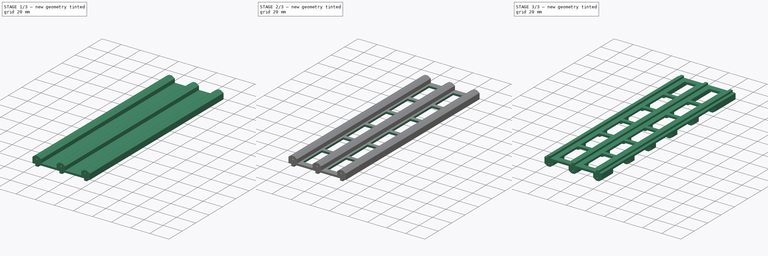
[diagram: build sequence overview — one tinted view per stage of 3, left to right]
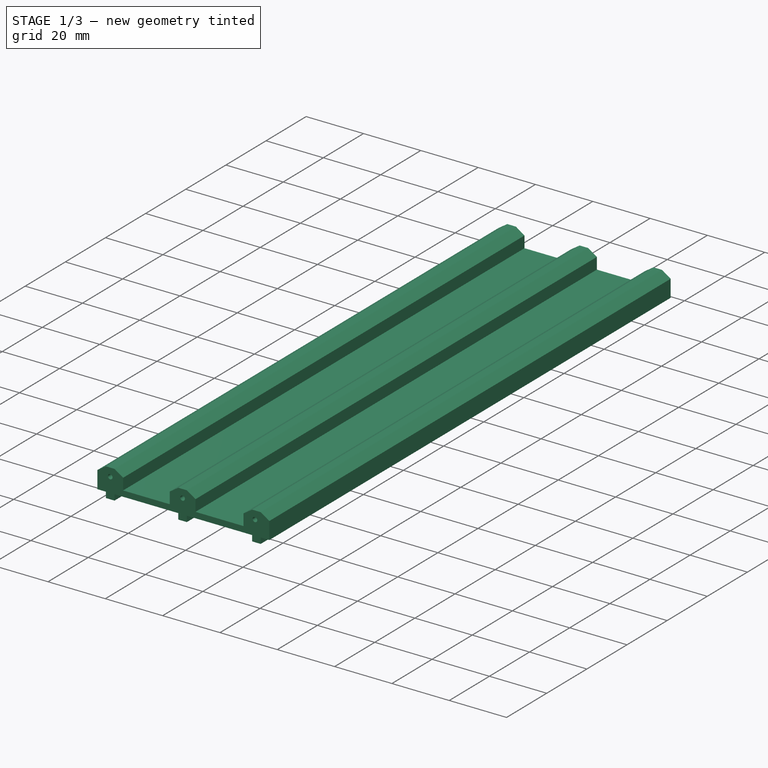
[diagram: stage 1 of 3 — iso view after this stage's code; geometry added in this stage tinted green]
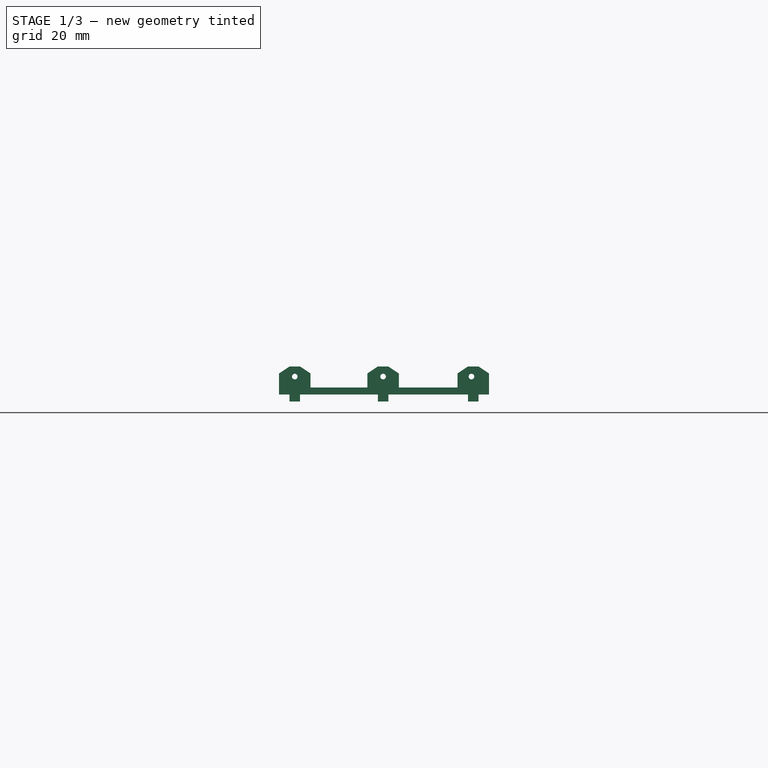
[diagram: stage 1 of 3 — front view after this stage's code; geometry added in this stage tinted green]
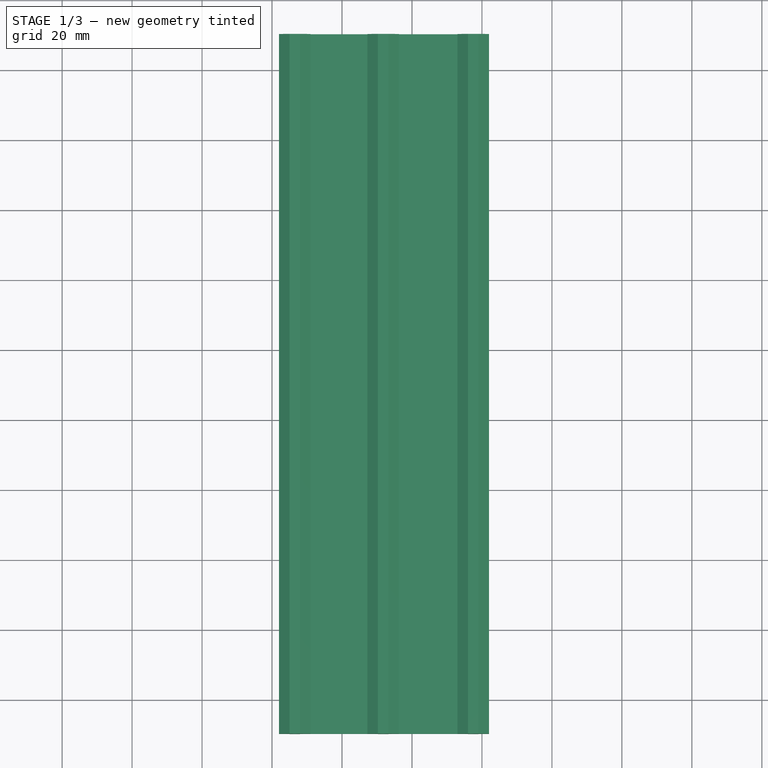
[diagram: stage 1 of 3 — top view after this stage's code; geometry added in this stage tinted green]
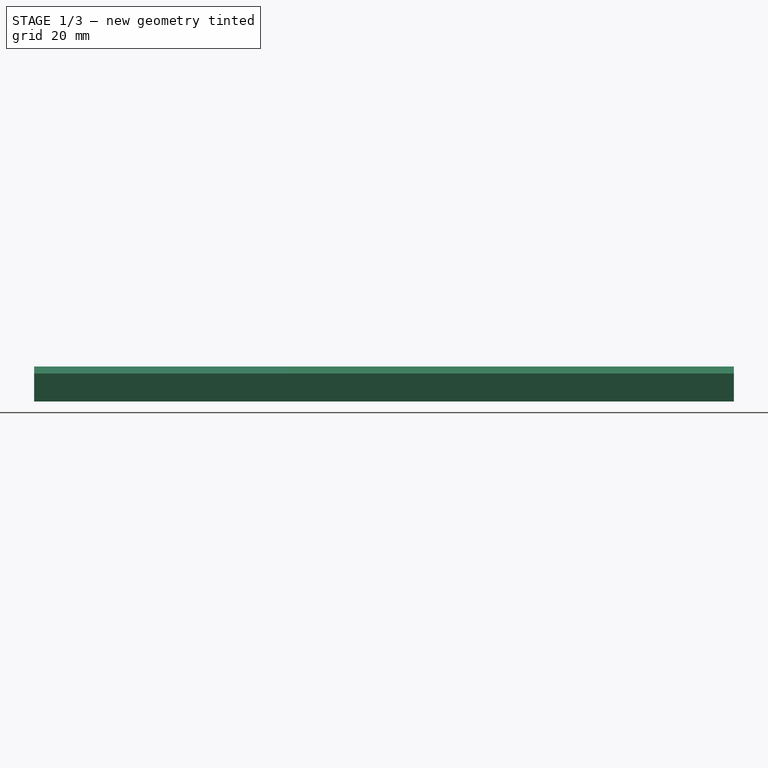
[diagram: stage 1 of 3 — right view after this stage's code; geometry added in this stage tinted green]
FCSTD DOCUMENT  (FreeCAD 1.0R39285 (Git))
Label: side-stand-01
License: All rights reserved
LicenseURL: http://en.wikipedia.org/wiki/All_rights_reserved
objects: Sketcher::SketchObject×7, PartDesign::Pocket×2, PartDesign::Pad×1, PartDesign::Hole×1, PartDesign::Body×1, App::Part×1, Part::Mirroring×1
note: 28 computed .brp shape members not serialized (recipe doc carries the construction recipe); baked Part::Feature solids carry a one-line shape summary decoded from their .brp

FEATURE [Sketcher::SketchObject] Sketch001
  ArcFitTolerance = 1e-06
  FullyConstrained = false
  MakeInternals = false
  MapMode = 45
  Placement = pos=(-8.84591,-9.71239,7.5) rot=(-1,0,0;1.5708rad)
  sketch-geometry (25):
    g0: GeomPoint [constr] X=-3.15 Y=8.69e-14 Z=0
    g1: LineSegment StartX=3.84591 StartY=-8.5 StartZ=0 EndX=-1.15409 EndY=-14.5 EndZ=0
    g2: LineSegment StartX=-1.15409 StartY=-14.5 StartZ=0 EndX=-4.15 EndY=-14.5 EndZ=0
    g3: LineSegment StartX=-4.15 StartY=-14.5 StartZ=0 EndX=-4.15 EndY=14.5 EndZ=0
    g4: LineSegment StartX=-4.15 StartY=14.5 StartZ=0 EndX=-1.15409 EndY=14.5 EndZ=0
    g5: LineSegment StartX=-1.15409 StartY=14.5 StartZ=0 EndX=3.84591 EndY=8.5 EndZ=0
    g6: LineSegment StartX=3.84591 StartY=8.5 StartZ=0 EndX=6.84591 EndY=8.5 EndZ=0
    g7: LineSegment StartX=6.84591 StartY=8.5 StartZ=0 EndX=-0.15 EndY=17.5 EndZ=0
    g8: LineSegment StartX=-9.15 StartY=17.5 StartZ=0 EndX=-9.15 EndY=-17.5 EndZ=0
    g9: LineSegment StartX=-0.15 StartY=-17.5 StartZ=0 EndX=6.84591 EndY=-8.5 EndZ=0
    g10: LineSegment StartX=6.84591 StartY=-8.5 StartZ=0 EndX=3.84591 EndY=-8.5 EndZ=0
    g11: LineSegment StartX=-0.15 StartY=17.5 StartZ=0 EndX=-0.15 EndY=40 EndZ=0
    g12: LineSegment StartX=-0.15 StartY=40 StartZ=0 EndX=40.85 EndY=40 EndZ=0
    g13: LineSegment StartX=40.85 StartY=40 StartZ=0 EndX=45.85 EndY=30 EndZ=0
    g14: LineSegment StartX=45.85 StartY=30 StartZ=0 EndX=50.85 EndY=30 EndZ=0
    g15: LineSegment StartX=50.85 StartY=30 StartZ=0 EndX=50.85 EndY=50 EndZ=0
    g16: LineSegment StartX=50.85 StartY=50 StartZ=0 EndX=-9.15 EndY=50 EndZ=0
    g17: LineSegment StartX=-9.15 StartY=50 StartZ=0 EndX=-9.15 EndY=17.5 EndZ=0
    g18: LineSegment StartX=-0.15 StartY=-17.5 StartZ=0 EndX=-0.15 EndY=-40 EndZ=0
    g19: LineSegment StartX=-0.15 StartY=-40 StartZ=0 EndX=40.85 EndY=-40 EndZ=0
    g20: LineSegment StartX=40.85 StartY=-40 StartZ=0 EndX=45.85 EndY=-30 EndZ=0
    g21: LineSegment StartX=45.85 StartY=-30 StartZ=0 EndX=50.85 EndY=-30 EndZ=0
    g22: LineSegment StartX=50.85 StartY=-30 StartZ=0 EndX=50.85 EndY=-50 EndZ=0
    g23: LineSegment StartX=50.85 StartY=-50 StartZ=0 EndX=-9.15 EndY=-50 EndZ=0
    g24: LineSegment StartX=-9.15 StartY=-50 StartZ=0 EndX=-9.15 EndY=-17.5 EndZ=0
  constraints (83):
    c: Coincident(g1,g2)
    c: Horizontal(g2)
    c: Coincident(g2,g3)
    c: Vertical(g3)
    c: Coincident(g3,g4)
    c: Horizontal(g4)
    c: Coincident(g4,g5)
    c: Coincident(g5,g6)
    c: Horizontal(g6)
    c: Coincident(g6,g7)
    c: Vertical(g8)
    c: Coincident(g9,g10)
    c: Coincident(g10,g1)
    c: DistanceX(g2,g-5) = 1
    c: DistanceX(g8,g2) = 5
    c: DistanceX(g1,g9) = 3
    c: Horizontal(g10)
    c: Equal(g4,g2)
    c: Equal(g7,g9)
    c: Equal(g5,g1)
    c: Equal(g6,g10)
    c: DistanceY(g-7,g3) = 1
    c: DistanceY(g2,g-5) = 1
    c: DistanceY(g-6,g5) = 1
    c: DistanceY(g1,g-3) = 1
    c: DistanceX(g1,g-5) = 0
    c: DistanceX(g-3,g1) = 0
    c: DistanceY(g8,g2) = 3
    c: Coincident(g11,g12)
    c: Horizontal(g12)
    c: Coincident(g12,g13)
    c: Coincident(g13,g14)
    c: Horizontal(g14)
    c: Coincident(g14,g15)
    c: Vertical(g15)
    c: Coincident(g15,g16)
    c: Horizontal(g16)
    c: Coincident(g16,g17)
    c: Vertical(g17)
    c: Vertical(g18)
    c: Coincident(g18,g19)
    c: Horizontal(g19)
    c: Coincident(g19,g20)
    c: Coincident(g20,g21)
    c: Horizontal(g21)
    c: Coincident(g21,g22)
    c: Vertical(g22)
    c: Coincident(g22,g23)
    c: Horizontal(g23)
    c: Coincident(g23,g24)
    c: Coincident(g24,g8)
    c: Vertical(g24)
    c: DistanceX(g16,g16) = 60
    c: Equal(g16,g23)
    c: Equal(g22,g15)
    c: Equal(g21,g14)
    c: DistanceX(g20,g20) = 5
    c: Parallel(g17,g11)
    c: DistanceX(g19,g19) = 41
    c: DistanceX(g12,g12) = 41
    c: DistanceX(g12,g19) = 0
    c: DistanceY(g1,g7) = 32
    c: DistanceY(g9,g1) = 3
    c: DistanceX(g7,g-1) = 0.15
    c: DistanceX(g16,g7) = 9
    c: DistanceY(g-1,g11) = 40
    c: DistanceY(g18,g-1) = 40
    c: DistanceY(g-1,g16) = 50
    c: DistanceY(g23,g-1) = 50
    c: DistanceY(g22,g22) = 20
    c: DistanceY(g11,g11) = 22.5
    c: DistanceY(g8,g8) = 35
    c: DistanceY(g17,g17) = 32.5
    c: Coincident(g11,g7)
    c: Coincident(g18,g9)
    c: Coincident(g8,g17)
    c: DistanceX(g8,g-1) = 9.15
    c: DistanceX(g0,g-1) = 3.15
    c: DistanceX(g-5,g-5) = 2
    c: DistanceX(g23,g23) = 60
    c: DistanceX(g13,g13) = 5
    c: DistanceY(g13,g13) = 10
    c: DistanceY(g22,g15) = 100
FEATURE [Sketcher::SketchObject] Sketch005  label="Sketch_BASE"
  ArcFitTolerance = 1e-06
  ExternalGeometry = -> [Sketch001]
  FullyConstrained = false
  MakeInternals = false
  MapMode = 5
  Placement = pos=(-8.84591,-9.71239,7.5) rot=(1,0,0;1.5708rad)
  sketch-geometry (40):
    g0: LineSegment [constr] StartX=-4.65409 StartY=44.8917 StartZ=0 EndX=45.8459 EndY=44.8917 EndZ=0
    g1: Circle [constr] CenterX=20.5959 CenterY=44.8917 CenterZ=0 NormalX=0 NormalY=0 NormalZ=1 AngleXU=0 Radius=1
    g2: LineSegment [constr] StartX=-4.65 StartY=-45 StartZ=0 EndX=45.85 EndY=-45 EndZ=0
    g3: Circle [constr] CenterX=20.6 CenterY=-45 CenterZ=0 NormalX=0 NormalY=0 NormalZ=1 AngleXU=0 Radius=1
    g4: Circle [constr] CenterX=-4.65 CenterY=-45 CenterZ=0 NormalX=0 NormalY=0 NormalZ=1 AngleXU=0 Radius=1
    g5: Circle [constr] CenterX=45.85 CenterY=-45 CenterZ=0 NormalX=0 NormalY=0 NormalZ=1 AngleXU=0 Radius=1
    g6: Circle [constr] CenterX=-4.65409 CenterY=44.8917 CenterZ=0 NormalX=0 NormalY=0 NormalZ=1 AngleXU=0 Radius=1
    g7: Circle [constr] CenterX=45.8459 CenterY=44.8917 CenterZ=0 NormalX=0 NormalY=0 NormalZ=1 AngleXU=0 Radius=1
    g8: LineSegment StartX=-9.15 StartY=-50 StartZ=0 EndX=-9.15 EndY=-44 EndZ=0
    g9: LineSegment StartX=-9.15 StartY=-44 StartZ=0 EndX=-6.15 EndY=-42 EndZ=0
    g10: LineSegment StartX=-6.15 StartY=-42 StartZ=0 EndX=-3.15 EndY=-42 EndZ=0
    g11: LineSegment StartX=-3.15 StartY=-42 StartZ=0 EndX=-0.15 EndY=-44 EndZ=0
    g12: LineSegment StartX=-0.15 StartY=-44 StartZ=0 EndX=-0.15 EndY=-48 EndZ=0
    g13: LineSegment StartX=-0.15 StartY=-48 StartZ=0 EndX=16.1 EndY=-48 EndZ=0
    g14: LineSegment StartX=16.1 StartY=-48 StartZ=0 EndX=16.1 EndY=-44 EndZ=0
    g15: LineSegment StartX=16.1 StartY=-44 StartZ=0 EndX=19.1 EndY=-42 EndZ=0
    g16: LineSegment StartX=19.1 StartY=-42 StartZ=0 EndX=22.1 EndY=-42 EndZ=0
    g17: LineSegment StartX=22.1 StartY=-42 StartZ=0 EndX=25.1 EndY=-44 EndZ=0
    g18: LineSegment StartX=25.1 StartY=-44 StartZ=0 EndX=25.1 EndY=-48 EndZ=0
    g19: LineSegment StartX=25.1 StartY=-48 StartZ=0 EndX=41.85 EndY=-48 EndZ=0
    g20: LineSegment StartX=41.85 StartY=-48 StartZ=0 EndX=41.85 EndY=-44 EndZ=0
    g21: LineSegment StartX=41.85 StartY=-44 StartZ=0 EndX=44.85 EndY=-42 EndZ=0
    g22: LineSegment StartX=44.85 StartY=-42 StartZ=0 EndX=47.85 EndY=-42 EndZ=0
    g23: LineSegment StartX=47.85 StartY=-42 StartZ=0 EndX=50.85 EndY=-44 EndZ=0
    g24: LineSegment StartX=50.85 StartY=-44 StartZ=0 EndX=50.85 EndY=-50 EndZ=0
    g25: LineSegment StartX=19.1 StartY=-50 StartZ=0 EndX=-3.15 EndY=-50 EndZ=0
    g26: LineSegment [constr] StartX=-9.15 StartY=-44 StartZ=0 EndX=50.85 EndY=-44 EndZ=0
    g27: LineSegment [constr] StartX=20.6 StartY=-45 StartZ=0 EndX=20.6 EndY=-50 EndZ=0
    g28: LineSegment StartX=-6.15 StartY=-50 StartZ=0 EndX=-6.15 EndY=-52 EndZ=0
    g29: LineSegment StartX=-6.15 StartY=-50 StartZ=0 EndX=-9.15 EndY=-50 EndZ=0
    g30: LineSegment StartX=-6.15 StartY=-52 StartZ=0 EndX=-3.15 EndY=-52 EndZ=0
    g31: LineSegment StartX=-3.15 StartY=-52 StartZ=0 EndX=-3.15 EndY=-50 EndZ=0
    g32: LineSegment StartX=19.1 StartY=-50 StartZ=0 EndX=19.1 EndY=-52.0294 EndZ=0
    g33: LineSegment StartX=19.1 StartY=-52.0294 StartZ=0 EndX=22.1 EndY=-52.0294 EndZ=0
    g34: LineSegment StartX=22.1 StartY=-52.0294 StartZ=0 EndX=22.1 EndY=-50.0294 EndZ=0
    g35: LineSegment StartX=22.1 StartY=-50.0294 StartZ=0 EndX=44.85 EndY=-50.0294 EndZ=0
    g36: LineSegment StartX=44.85 StartY=-50.0294 StartZ=0 EndX=44.85 EndY=-52.0294 EndZ=0
    g37: LineSegment StartX=44.85 StartY=-52.0294 StartZ=0 EndX=47.85 EndY=-52.0294 EndZ=0
    g38: LineSegment StartX=47.85 StartY=-52.0294 StartZ=0 EndX=47.85 EndY=-50 EndZ=0
    g39: LineSegment StartX=47.85 StartY=-50 StartZ=0 EndX=50.85 EndY=-50 EndZ=0
  constraints (106):
    c: Symmetric(g-4,g-3,g0)
    c: Symmetric(g-3,g-4,g0)
    c: Diameter(g1) = 2
    c: Symmetric(g0,g0,g1)
    c: Diameter(g3) = 2
    c: Symmetric(g2,g2,g3)
    c: Diameter(g4) = 2
    c: Coincident(g4,g2)
    c: Diameter(g5) = 2
    c: Coincident(g5,g2)
    c: Diameter(g6) = 2
    c: Coincident(g6,g0)
    c: Diameter(g7) = 2
    c: Coincident(g7,g0)
    c: Vertical(g8)
    c: Coincident(g8,g9)
    c: Coincident(g9,g10)
    c: Horizontal(g10)
    c: Coincident(g10,g11)
    c: Coincident(g11,g12)
    c: Vertical(g12)
    c: Coincident(g12,g13)
    c: Horizontal(g13)
    c: Coincident(g13,g14)
    c: Vertical(g14)
    c: Coincident(g14,g15)
    c: Coincident(g15,g16)
    c: Horizontal(g16)
    c: Coincident(g16,g17)
    c: Coincident(g17,g18)
    c: Coincident(g18,g19)
    c: Horizontal(g19)
    c: Coincident(g19,g20)
    c: Vertical(g20)
    c: Coincident(g20,g21)
    c: Coincident(g21,g22)
    c: Coincident(g22,g23)
    c: Coincident(g23,g24)
    c: Vertical(g24)
    c: Coincident(g29,g8)
    c: DistanceY(g8,g8) = 6
    c: DistanceY(g8,g9) = 8
    c: DistanceY(g24,g24) = 6
    c: DistanceY(g8,g15) = 8
    c: DistanceY(g24,g21) = 8
    c: Horizontal(g22)
    c: Vertical(g18)
    c: Coincident(g26,g8)
    c: Coincident(g26,g23)
    c: PointOnObject(g11,g26)
    c: PointOnObject(g14,g26)
    c: PointOnObject(g17,g26)
    c: PointOnObject(g20,g26)
    c: DistanceX(g9,g9) = 3
    c: DistanceX(g11,g11) = 3
    c: DistanceX(g10,g10) = 3
    c: DistanceX(g15,g15) = 3
    c: DistanceX(g16,g16) = 3
    c: DistanceX(g17,g17) = 3
    c: DistanceX(g21,g21) = 3
    c: DistanceX(g22,g22) = 3
    c: DistanceX(g23,g23) = 3
    c: DistanceY(g8,g12) = 2
    c: DistanceY(g24,g19) = 2
    c: Coincident(g27,g3)
    c: Symmetric(g13,g18,g27)
    c: Coincident(g24,g-6)
    c: Coincident(g8,g-6)
    c: Symmetric(g-5,g8,g2)
    c: Symmetric(g-5,g24,g2)
    c: Symmetric(g-5,g-6,g2)
    c: PointOnObject(g28,g29)
    c: Coincident(g28,g30)
    c: DistanceX(g28,g9) = 0
    c: DistanceX(g31,g10) = 0
    c: DistanceY(g28,g28) = 2
    c: Coincident(g25,g31)
    c: PointOnObject(g29,g28)
    c: Coincident(g30,g31)
    c: Vertical(g28)
    c: Vertical(g31)
    c: Horizontal(g30)
    c: Vertical(g32)
    c: Coincident(g32,g33)
    c: Horizontal(g33)
    c: Coincident(g33,g34)
    c: Vertical(g34)
    c: Coincident(g25,g32)
    c: DistanceX(g32,g15) = 0
    c: DistanceX(g16,g33) = 0
    c: Coincident(g35,g34)
    c: Coincident(g39,g24)
    c: Horizontal(g35)
    c: DistanceY(g34,g34) = 2
    c: DistanceY(g25,g25) = 0
    c: Vertical(g36)
    c: Coincident(g36,g37)
    c: Horizontal(g37)
    c: Coincident(g37,g38)
    c: PointOnObject(g38,g39)
    c: Vertical(g38)
    c: Coincident(g35,g36)
    c: PointOnObject(g39,g38)
    c: DistanceY(g36,g36) = 2
    c: DistanceX(g35,g21) = 0
    c: DistanceX(g38,g22) = 0
FEATURE [PartDesign::Pad] Pad
  Direction = (0,-1,2e-16)
  Length = 200
  Length2 = 10
  Placement = pos=(-8.84591,-9.71239,7.5) rot=(1,0,0;1.5708rad)
  Profile = -> Sketch005
  ReferenceAxis = -> Sketch005 [N_Axis]
  Suppressed = false
  Type = 0
FEATURE [Sketcher::SketchObject] Sketch
  ArcFitTolerance = 1e-06
  AttachmentSupport = -> [Pad]
  FullyConstrained = true
  MakeInternals = false
  MapMode = 5
  Placement = pos=(-8.84591,-9.71239,7.5) rot=(-1,0,0;1.5708rad)
FEATURE [Sketcher::SketchObject] Sketch008  label="Sketch_holes001"
  ArcFitTolerance = 1e-06
  FullyConstrained = false
  MakeInternals = false
  MapMode = 5
  Placement = pos=(-8.84591,-9.71239,7.5) rot=(-1,0,0;1.5708rad)
  sketch-geometry (9):
    g0: LineSegment [constr] StartX=-4.65409 StartY=44.8917 StartZ=0 EndX=45.8459 EndY=44.8917 EndZ=0
    g1: Circle CenterX=20.5959 CenterY=44.8917 CenterZ=0 NormalX=0 NormalY=0 NormalZ=1 AngleXU=0 Radius=1
    g2: LineSegment [constr] StartX=-4.65409 StartY=-44.7802 StartZ=0 EndX=45.8459 EndY=-44.7802 EndZ=0
    g3: Circle [constr] CenterX=20.5959 CenterY=-44.7802 CenterZ=0 NormalX=0 NormalY=0 NormalZ=1 AngleXU=0 Radius=1
    g4: Circle [constr] CenterX=-4.65409 CenterY=-44.7802 CenterZ=0 NormalX=0 NormalY=0 NormalZ=1 AngleXU=0 Radius=1
    g5: Circle [constr] CenterX=45.8459 CenterY=-44.7802 CenterZ=0 NormalX=0 NormalY=0 NormalZ=1 AngleXU=0 Radius=1
    g6: Circle CenterX=-4.65409 CenterY=44.8917 CenterZ=0 NormalX=0 NormalY=0 NormalZ=1 AngleXU=0 Radius=1
    g7: Circle CenterX=45.8459 CenterY=44.8917 CenterZ=0 NormalX=0 NormalY=0 NormalZ=1 AngleXU=0 Radius=1
    g8: LineSegment [constr] StartX=20.5959 StartY=-44.7802 StartZ=0 EndX=20.5959 EndY=-50.8731 EndZ=0
  constraints (17):
    c: Symmetric(g-4,g-3,g0)
    c: Symmetric(g-3,g-4,g0)
    c: Diameter(g1) = 2
    c: Symmetric(g0,g0,g1)
    c: Symmetric(g-5,g-6,g2)
    c: Symmetric(g-6,g-5,g2)
    c: Diameter(g3) = 2
    c: Symmetric(g2,g2,g3)
    c: Diameter(g4) = 2
    c: Coincident(g4,g2)
    c: Diameter(g5) = 2
    c: Coincident(g5,g2)
    c: Diameter(g6) = 2
    c: Coincident(g6,g0)
    c: Diameter(g7) = 2
    c: Coincident(g7,g0)
    c: Coincident(g8,g3)
FEATURE [PartDesign::Hole] Hole
  BaseFeature = -> Pad
  CustomThreadClearance = 0
  Depth = 422.098
  DepthType = 1
  Diameter = 1.6
  DrillForDepth = false
  DrillPoint = 1
  DrillPointAngle = 118
  HoleCutCountersinkAngle = 90
  HoleCutCustomValues = false
  HoleCutDepth = 0
  HoleCutDiameter = 6.1
  HoleCutType = 0
  ModelThread = false
  Placement = pos=(-8.84591,-9.71239,7.5) rot=(1,0,0;1.5708rad)
  Profile = -> Sketch008
  Suppressed = false
  Tapered = false
  TaperedAngle = 90
  ThreadClass = 0
  ThreadDepth = 422.098
  ThreadDepthType = 0
  ThreadDirection = 0
  ThreadFit = 0
  ThreadSize = 6
  ThreadType = 1
  Threaded = true
  UseCustomThreadClearance = false
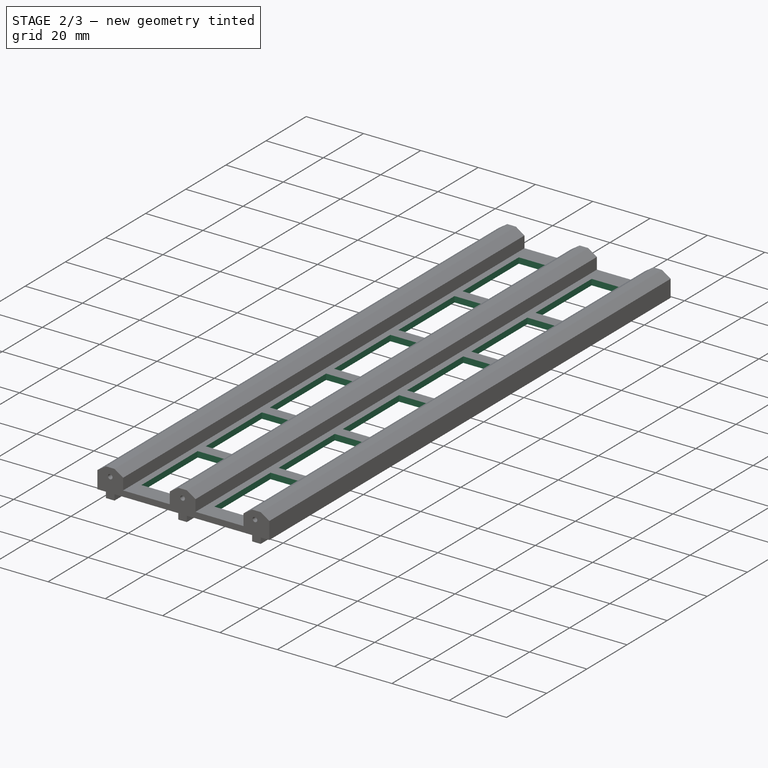
[diagram: stage 2 of 3 — iso view after this stage's code; geometry added in this stage tinted green]
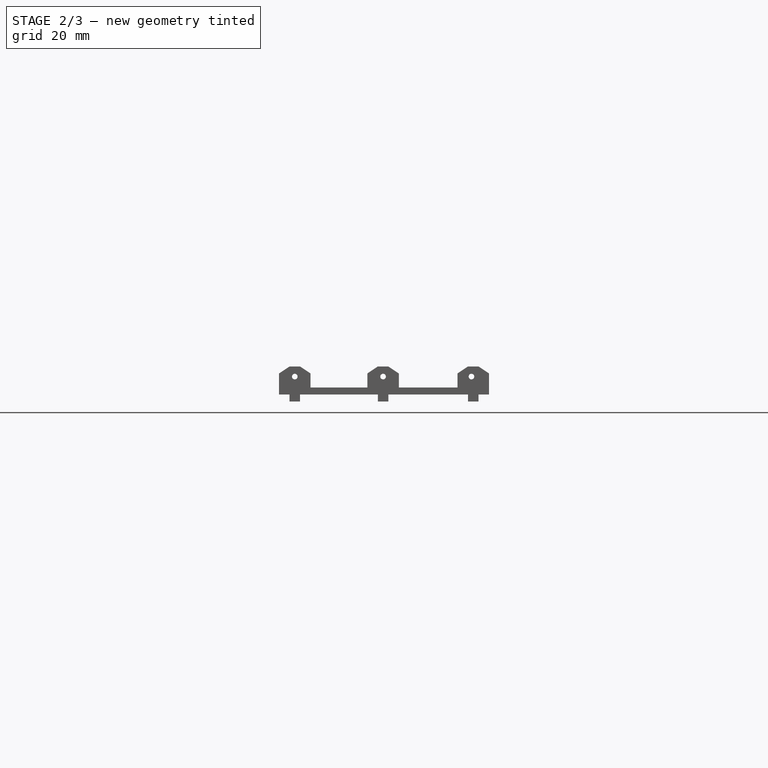
[diagram: stage 2 of 3 — front view after this stage's code; geometry added in this stage tinted green]
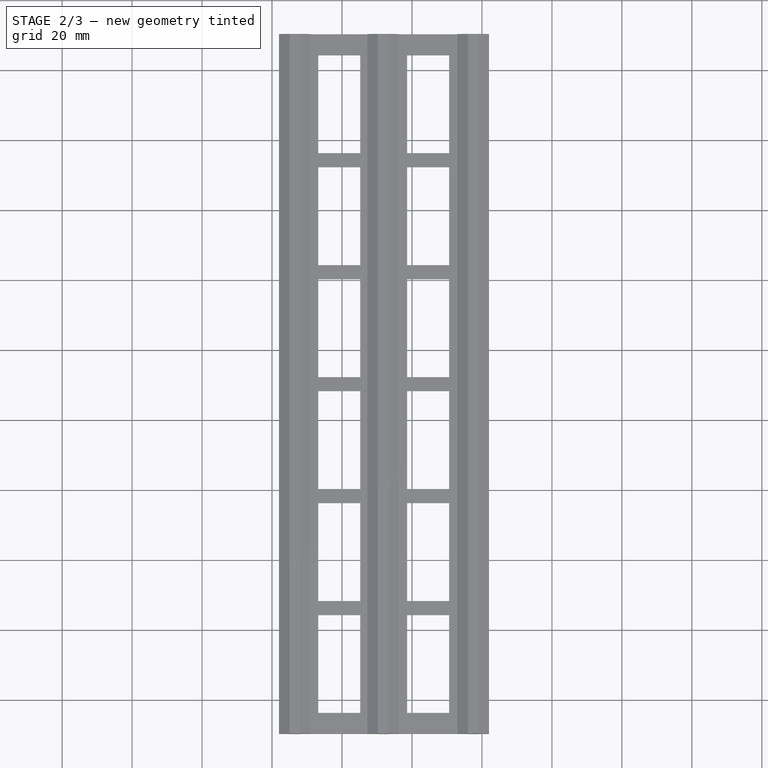
[diagram: stage 2 of 3 — top view after this stage's code; geometry added in this stage tinted green]
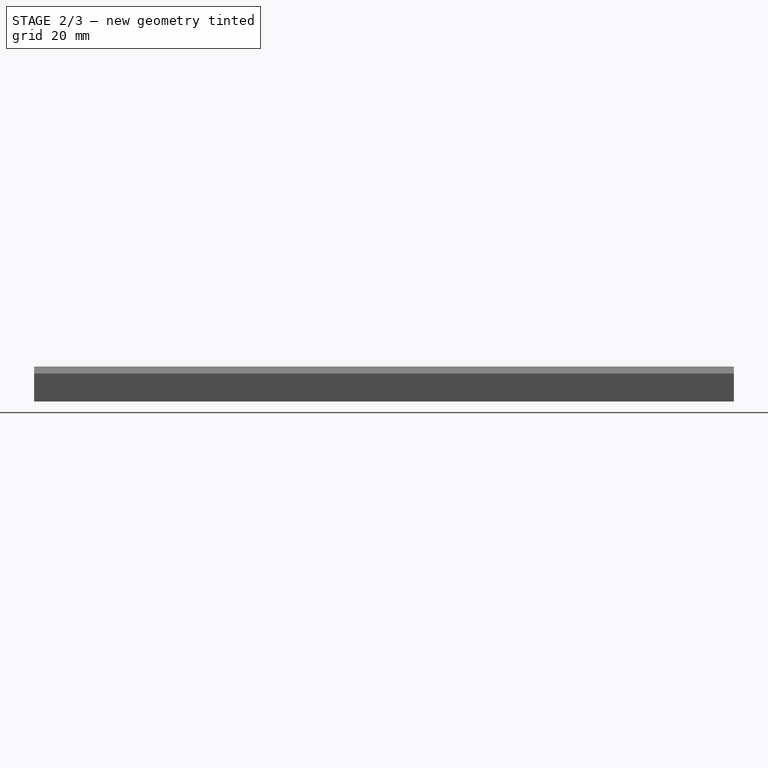
[diagram: stage 2 of 3 — right view after this stage's code; geometry added in this stage tinted green]
FEATURE [Sketcher::SketchObject] Sketch006  label="Sketch_windows"
  ArcFitTolerance = 1e-06
  FullyConstrained = false
  MakeInternals = false
  MapMode = 5
  Placement = pos=(-8.84591,-9.71239,-40.5) rot=(0,0,1;3.14159rad)
  sketch-geometry (52):
    g0: LineSegment StartX=-39.475 StartY=34 StartZ=0 EndX=-39.475 EndY=6 EndZ=0
    g1: LineSegment StartX=-39.475 StartY=6 StartZ=0 EndX=-27.475 EndY=6 EndZ=0
    g2: LineSegment StartX=-27.475 StartY=6 StartZ=0 EndX=-27.475 EndY=34 EndZ=0
    g3: LineSegment StartX=-27.475 StartY=34 StartZ=0 EndX=-39.475 EndY=34 EndZ=0
    g4: LineSegment [constr] StartX=-39.475 StartY=6 StartZ=0 EndX=-41.85 EndY=-1.8e-15 EndZ=0
    g5: LineSegment [constr] StartX=-27.475 StartY=6 StartZ=0 EndX=-25.1 EndY=-1.8e-15 EndZ=0
    g6: LineSegment StartX=-14.05 StartY=34 StartZ=0 EndX=-14.05 EndY=6 EndZ=0
    g7: LineSegment StartX=-14.05 StartY=6 StartZ=0 EndX=-2.05 EndY=6 EndZ=0
    g8: LineSegment StartX=-2.05 StartY=6 StartZ=0 EndX=-2.05 EndY=34 EndZ=0
    g9: LineSegment StartX=-2.05 StartY=34 StartZ=0 EndX=-14.05 EndY=34 EndZ=0
    g10: LineSegment [constr] StartX=-14.05 StartY=6 StartZ=0 EndX=-16.1 EndY=-1.8e-15 EndZ=0
    g11: LineSegment [constr] StartX=-2.05 StartY=6 StartZ=0 EndX=0 EndY=0 EndZ=0
    g12: LineSegment StartX=-39.475 StartY=66 StartZ=0 EndX=-39.475 EndY=38 EndZ=0
    g13: LineSegment StartX=-39.475 StartY=38 StartZ=0 EndX=-27.475 EndY=38 EndZ=0
    g14: LineSegment StartX=-27.475 StartY=38 StartZ=0 EndX=-27.475 EndY=66 EndZ=0
    g15: LineSegment StartX=-27.475 StartY=66 StartZ=0 EndX=-39.475 EndY=66 EndZ=0
    g16: LineSegment StartX=-14.05 StartY=66 StartZ=0 EndX=-14.05 EndY=38 EndZ=0
    g17: LineSegment StartX=-14.05 StartY=38 StartZ=0 EndX=-2.05 EndY=38 EndZ=0
    g18: LineSegment StartX=-2.05 StartY=38 StartZ=0 EndX=-2.05 EndY=66 EndZ=0
    g19: LineSegment StartX=-2.05 StartY=66 StartZ=0 EndX=-14.05 EndY=66 EndZ=0
    g20: LineSegment StartX=-39.475 StartY=98 StartZ=0 EndX=-39.475 EndY=70 EndZ=0
    g21: LineSegment StartX=-39.475 StartY=70 StartZ=0 EndX=-27.475 EndY=70 EndZ=0
    g22: LineSegment StartX=-27.475 StartY=70 StartZ=0 EndX=-27.475 EndY=98 EndZ=0
    g23: LineSegment StartX=-27.475 StartY=98 StartZ=0 EndX=-39.475 EndY=98 EndZ=0
    g24: LineSegment StartX=-14.05 StartY=98 StartZ=0 EndX=-14.05 EndY=70 EndZ=0
    g25: LineSegment StartX=-14.05 StartY=70 StartZ=0 EndX=-2.05 EndY=70 EndZ=0
    g26: LineSegment StartX=-2.05 StartY=70 StartZ=0 EndX=-2.05 EndY=98 EndZ=0
    g27: LineSegment StartX=-2.05 StartY=98 StartZ=0 EndX=-14.05 EndY=98 EndZ=0
    g28: LineSegment StartX=-39.475 StartY=130 StartZ=0 EndX=-39.475 EndY=102 EndZ=0
    g29: LineSegment StartX=-39.475 StartY=102 StartZ=0 EndX=-27.475 EndY=102 EndZ=0
    g30: LineSegment StartX=-27.475 StartY=102 StartZ=0 EndX=-27.475 EndY=130 EndZ=0
    g31: LineSegment StartX=-27.475 StartY=130 StartZ=0 EndX=-39.475 EndY=130 EndZ=0
    g32: LineSegment StartX=-14.05 StartY=130 StartZ=0 EndX=-14.05 EndY=102 EndZ=0
    g33: LineSegment StartX=-14.05 StartY=102 StartZ=0 EndX=-2.05 EndY=102 EndZ=0
    g34: LineSegment StartX=-2.05 StartY=102 StartZ=0 EndX=-2.05 EndY=130 EndZ=0
    g35: LineSegment StartX=-2.05 StartY=130 StartZ=0 EndX=-14.05 EndY=130 EndZ=0
    g36: LineSegment StartX=-39.475 StartY=162 StartZ=0 EndX=-39.475 EndY=134 EndZ=0
    g37: LineSegment StartX=-39.475 StartY=134 StartZ=0 EndX=-27.475 EndY=134 EndZ=0
    g38: LineSegment StartX=-27.475 StartY=134 StartZ=0 EndX=-27.475 EndY=162 EndZ=0
    g39: LineSegment StartX=-27.475 StartY=162 StartZ=0 EndX=-39.475 EndY=162 EndZ=0
    g40: LineSegment StartX=-14.05 StartY=162 StartZ=0 EndX=-14.05 EndY=134 EndZ=0
    g41: LineSegment StartX=-14.05 StartY=134 StartZ=0 EndX=-2.05 EndY=134 EndZ=0
    g42: LineSegment StartX=-2.05 StartY=134 StartZ=0 EndX=-2.05 EndY=162 EndZ=0
    g43: LineSegment StartX=-2.05 StartY=162 StartZ=0 EndX=-14.05 EndY=162 EndZ=0
    g44: LineSegment StartX=-39.475 StartY=194 StartZ=0 EndX=-39.475 EndY=166 EndZ=0
    g45: LineSegment StartX=-39.475 StartY=166 StartZ=0 EndX=-27.475 EndY=166 EndZ=0
    g46: LineSegment StartX=-27.475 StartY=166 StartZ=0 EndX=-27.475 EndY=194 EndZ=0
    g47: LineSegment StartX=-27.475 StartY=194 StartZ=0 EndX=-39.475 EndY=194 EndZ=0
    g48: LineSegment StartX=-14.05 StartY=194 StartZ=0 EndX=-14.05 EndY=166 EndZ=0
    g49: LineSegment StartX=-14.05 StartY=166 StartZ=0 EndX=-2.05 EndY=166 EndZ=0
    g50: LineSegment StartX=-2.05 StartY=166 StartZ=0 EndX=-2.05 EndY=194 EndZ=0
    g51: LineSegment StartX=-2.05 StartY=194 StartZ=0 EndX=-14.05 EndY=194 EndZ=0
  constraints (137):
    c: Coincident(g0,g1)
    c: Coincident(g1,g2)
    c: Coincident(g2,g3)
    c: Coincident(g3,g0)
    c: Vertical(g0)
    c: Vertical(g2)
    c: Horizontal(g1)
    c: Horizontal(g3)
    c: Distance(g0,g2) = 12
    c: Distance(g1,g3) = 28
    c: DistanceY(g-1,g0) = 6
    c: Coincident(g4,g0)
    c: Coincident(g4,g-3)
    c: Coincident(g5,g1)
    c: Coincident(g5,g-4)
    c: Equal(g4,g5)
    c: Coincident(g6,g7)
    c: Coincident(g7,g8)
    c: Coincident(g8,g9)
    c: Coincident(g9,g6)
    c: Vertical(g6)
    c: Vertical(g8)
    c: Horizontal(g7)
    c: Horizontal(g9)
    c: DistanceX(g9,g9) = 12
    c: DistanceY(g6,g6) = 28
    c: DistanceY(g1,g7) = 0
    c: Coincident(g10,g6)
    c: Coincident(g10,g-5)
    c: Coincident(g11,g7)
    c: Coincident(g11,g-1)
    c: Equal(g10,g11)
    c: Coincident(g12,g13)
    c: Coincident(g20,g21)
    c: Coincident(g28,g29)
    c: Coincident(g36,g37)
    c: Coincident(g44,g45)
    c: Coincident(g13,g14)
    c: Coincident(g21,g22)
    c: Coincident(g29,g30)
    c: Coincident(g37,g38)
    c: Coincident(g45,g46)
    c: Coincident(g14,g15)
    c: Coincident(g22,g23)
    c: Coincident(g30,g31)
    c: Coincident(g38,g39)
    c: Coincident(g46,g47)
    c: Coincident(g15,g12)
    c: Coincident(g23,g20)
    c: Coincident(g31,g28)
    c: Coincident(g39,g36)
    c: Coincident(g47,g44)
    c: Vertical(g12)
    c: Vertical(g20)
    c: Vertical(g28)
    c: Vertical(g36)
    c: Vertical(g44)
    c: Vertical(g14)
    c: Vertical(g22)
    c: Vertical(g30)
    c: Vertical(g38)
    c: Vertical(g46)
    c: Horizontal(g13)
    c: Horizontal(g21)
    c: Horizontal(g29)
    c: Horizontal(g37)
    c: Horizontal(g45)
    c: Horizontal(g15)
    c: Horizontal(g23)
    c: Horizontal(g31)
    c: Horizontal(g39)
    c: Horizontal(g47)
    c: Distance(g12,g14) = 12
    c: Distance(g20,g22) = 12
    c: Distance(g28,g30) = 12
    c: Distance(g36,g38) = 12
    c: Distance(g44,g46) = 12
    c: Distance(g13,g15) = 28
    c: Distance(g21,g23) = 28
    c: Distance(g29,g31) = 28
    c: Distance(g37,g39) = 28
    c: Distance(g45,g47) = 28
    c: Coincident(g16,g17)
    c: Coincident(g24,g25)
    c: Coincident(g32,g33)
    c: Coincident(g40,g41)
    c: Coincident(g48,g49)
    c: Coincident(g17,g18)
    c: Coincident(g25,g26)
    c: Coincident(g33,g34)
    c: Coincident(g41,g42)
    c: Coincident(g49,g50)
    c: Coincident(g18,g19)
    c: Coincident(g26,g27)
    c: Coincident(g34,g35)
    c: Coincident(g42,g43)
    c: Coincident(g50,g51)
    c: Coincident(g19,g16)
    c: Coincident(g27,g24)
    c: Coincident(g35,g32)
    c: Coincident(g43,g40)
    c: Coincident(g51,g48)
    c: Vertical(g16)
    c: Vertical(g24)
    c: Vertical(g32)
    c: Vertical(g40)
    c: Vertical(g48)
    c: Vertical(g18)
    c: Vertical(g26)
    c: Vertical(g34)
    c: Vertical(g42)
    c: Vertical(g50)
    c: Horizontal(g17)
    c: Horizontal(g25)
    c: Horizontal(g33)
    c: Horizontal(g41)
    c: Horizontal(g49)
    c: Horizontal(g19)
    c: Horizontal(g27)
    c: Horizontal(g35)
    c: Horizontal(g43)
    c: Horizontal(g51)
    c: Equal(g9,g19)
    c: Equal(g9,g27)
    c: Equal(g9,g35)
    c: Equal(g9,g43)
    c: Equal(g9,g51)
    c: Equal(g6,g16)
    c: Equal(g6,g24)
    c: Equal(g6,g32)
    c: Equal(g6,g40)
    c: Equal(g6,g48)
    c: DistanceY(g13,g17) = 0
    c: DistanceY(g21,g25) = 0
    c: DistanceY(g29,g33) = 0
    c: DistanceY(g37,g41) = 0
    c: DistanceY(g45,g49) = 0
FEATURE [PartDesign::Pocket] Pocket
  BaseFeature = -> Hole
  Direction = (0,0,-1)
  Length = 5
  Length2 = 5
  Placement = pos=(-8.84591,-9.71239,7.5) rot=(1,0,0;1.5708rad)
  Profile = -> Sketch006
  ReferenceAxis = -> Sketch006 [N_Axis]
  Suppressed = false
  Type = 1
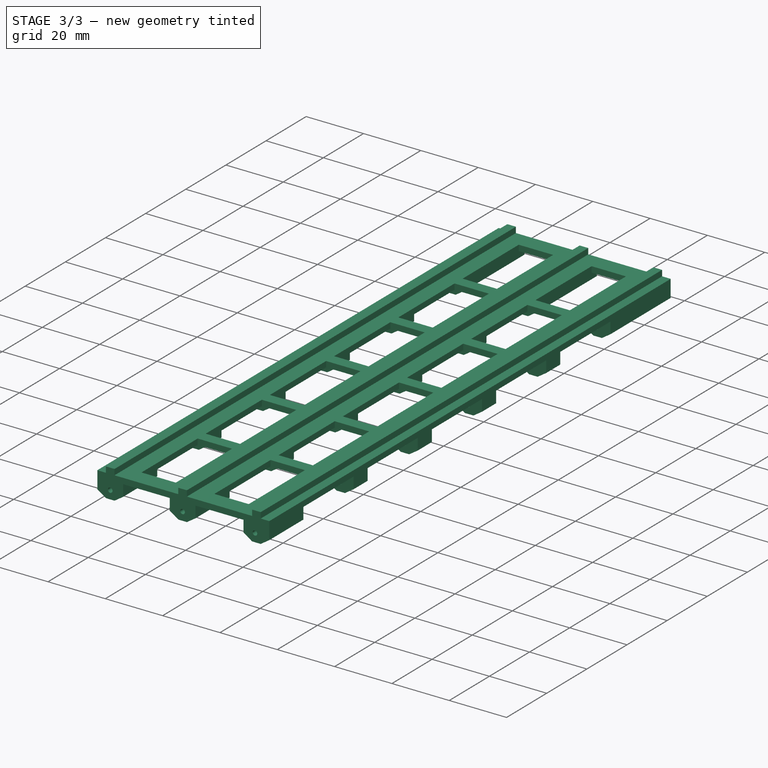
[diagram: stage 3 of 3 — iso view after this stage's code; geometry added in this stage tinted green]
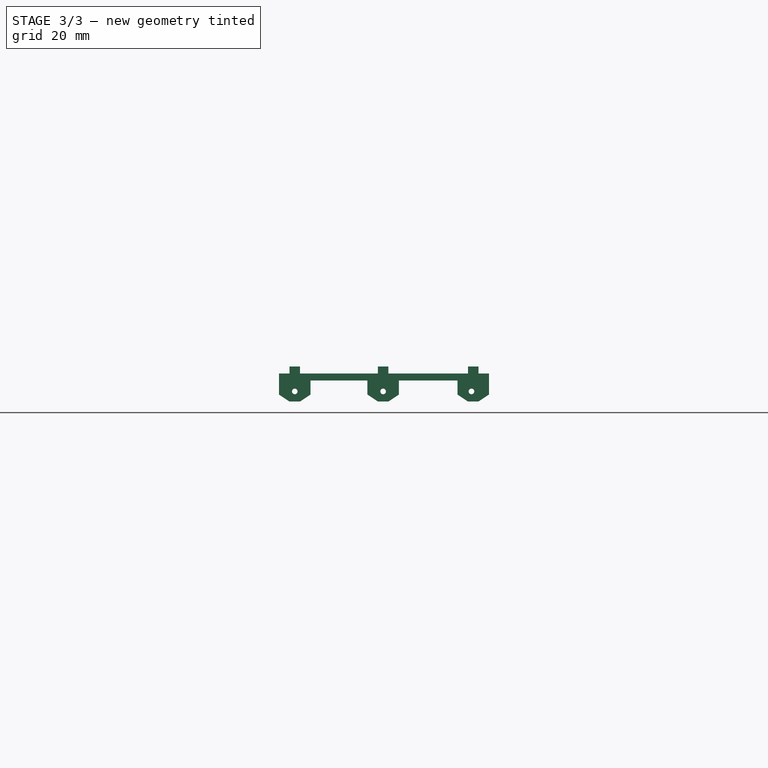
[diagram: stage 3 of 3 — front view after this stage's code; geometry added in this stage tinted green]
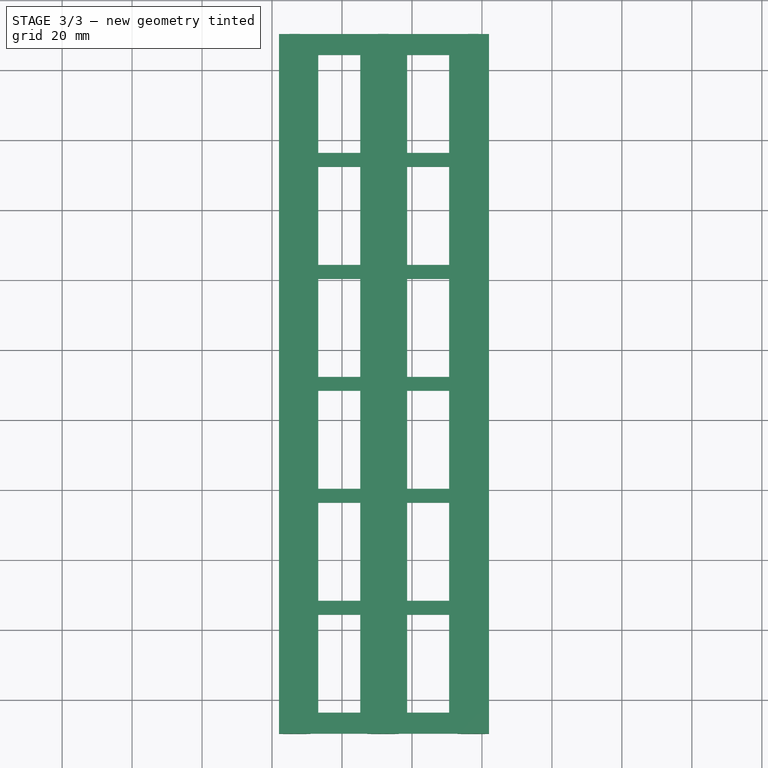
[diagram: stage 3 of 3 — top view after this stage's code; geometry added in this stage tinted green]
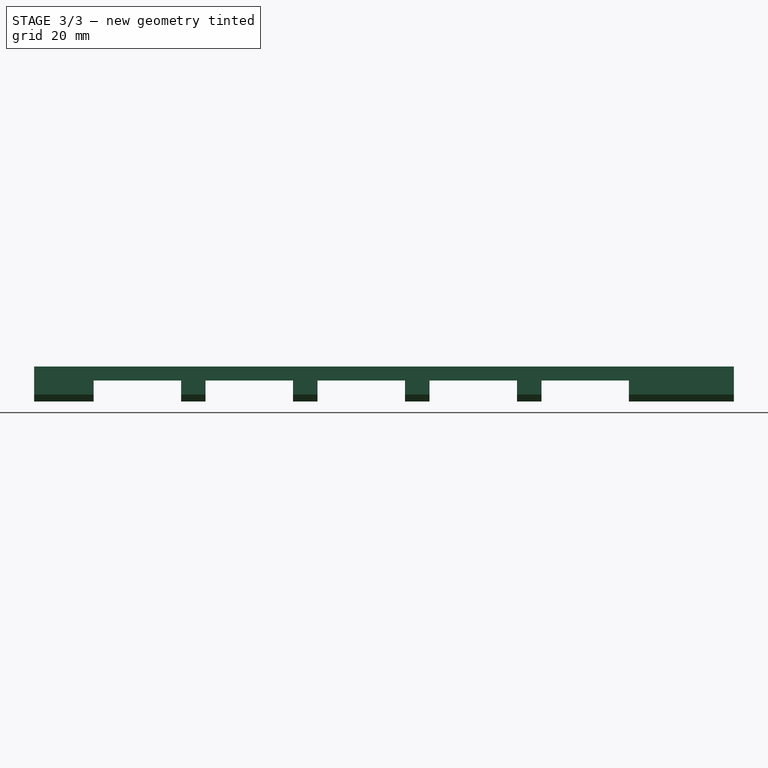
[diagram: stage 3 of 3 — right view after this stage's code; geometry added in this stage tinted green]
FEATURE [Sketcher::SketchObject] Sketch010  label="Sketch_BASE001"
  ArcFitTolerance = 1e-06
  FullyConstrained = false
  MakeInternals = false
  MapMode = 5
  Placement = pos=(-8.84591,-9.71239,7.5) rot=(1,0,0;1.5708rad)
  sketch-geometry (28):
    g0: LineSegment [constr] StartX=-4.65409 StartY=44.8917 StartZ=0 EndX=45.8459 EndY=44.8917 EndZ=0
    g1: Circle [constr] CenterX=20.5959 CenterY=44.8917 CenterZ=0 NormalX=0 NormalY=0 NormalZ=1 AngleXU=0 Radius=1
    g2: LineSegment [constr] StartX=-4.65 StartY=-45 StartZ=0 EndX=45.85 EndY=-45 EndZ=0
    g3: Circle [constr] CenterX=20.6 CenterY=-45 CenterZ=0 NormalX=0 NormalY=0 NormalZ=1 AngleXU=0 Radius=1
    g4: Circle [constr] CenterX=-4.65 CenterY=-45 CenterZ=0 NormalX=0 NormalY=0 NormalZ=1 AngleXU=0 Radius=1
    g5: Circle [constr] CenterX=45.85 CenterY=-45 CenterZ=0 NormalX=0 NormalY=0 NormalZ=1 AngleXU=0 Radius=1
    g6: Circle [constr] CenterX=-4.65409 CenterY=44.8917 CenterZ=0 NormalX=0 NormalY=0 NormalZ=1 AngleXU=0 Radius=1
    g7: Circle [constr] CenterX=45.8459 CenterY=44.8917 CenterZ=0 NormalX=0 NormalY=0 NormalZ=1 AngleXU=0 Radius=1
    g8: LineSegment StartX=-9.15 StartY=-50 StartZ=0 EndX=-9.15 EndY=-44 EndZ=0
    g9: LineSegment StartX=-9.15 StartY=-44 StartZ=0 EndX=-6.15 EndY=-42 EndZ=0
    g10: LineSegment StartX=-6.15 StartY=-42 StartZ=0 EndX=-3.15 EndY=-42 EndZ=0
    g11: LineSegment StartX=-3.15 StartY=-42 StartZ=0 EndX=-0.15 EndY=-44 EndZ=0
    g12: LineSegment StartX=-0.15 StartY=-44 StartZ=0 EndX=-0.15 EndY=-48 EndZ=0
    g13: LineSegment StartX=-0.15 StartY=-48 StartZ=0 EndX=16.1 EndY=-48 EndZ=0
    g14: LineSegment StartX=16.1 StartY=-48 StartZ=0 EndX=16.1 EndY=-44 EndZ=0
    g15: LineSegment StartX=16.1 StartY=-44 StartZ=0 EndX=19.1 EndY=-42 EndZ=0
    g16: LineSegment StartX=19.1 StartY=-42 StartZ=0 EndX=22.1 EndY=-42 EndZ=0
    g17: LineSegment StartX=22.1 StartY=-42 StartZ=0 EndX=25.1 EndY=-44 EndZ=0
    g18: LineSegment StartX=25.1 StartY=-44 StartZ=0 EndX=25.1 EndY=-48 EndZ=0
    g19: LineSegment StartX=25.1 StartY=-48 StartZ=0 EndX=41.85 EndY=-48 EndZ=0
    g20: LineSegment StartX=41.85 StartY=-48 StartZ=0 EndX=41.85 EndY=-44 EndZ=0
    g21: LineSegment StartX=41.85 StartY=-44 StartZ=0 EndX=44.85 EndY=-42 EndZ=0
    g22: LineSegment StartX=44.85 StartY=-42 StartZ=0 EndX=47.85 EndY=-42 EndZ=0
    g23: LineSegment StartX=47.85 StartY=-42 StartZ=0 EndX=50.85 EndY=-44 EndZ=0
    g24: LineSegment StartX=50.85 StartY=-44 StartZ=0 EndX=50.85 EndY=-50 EndZ=0
    g25: LineSegment StartX=50.85 StartY=-50 StartZ=0 EndX=-9.15 EndY=-50 EndZ=0
    g26: LineSegment [constr] StartX=-9.15 StartY=-44 StartZ=0 EndX=50.85 EndY=-44 EndZ=0
    g27: LineSegment [constr] StartX=20.6 StartY=-45 StartZ=0 EndX=20.6 EndY=-50 EndZ=0
  constraints (72):
    c: Symmetric(g-4,g-3,g0)
    c: Symmetric(g-3,g-4,g0)
    c: Diameter(g1) = 2
    c: Symmetric(g0,g0,g1)
    c: Diameter(g3) = 2
    c: Symmetric(g2,g2,g3)
    c: Diameter(g4) = 2
    c: Coincident(g4,g2)
    c: Diameter(g5) = 2
    c: Coincident(g5,g2)
    c: Diameter(g6) = 2
    c: Coincident(g6,g0)
    c: Diameter(g7) = 2
    c: Coincident(g7,g0)
    c: Vertical(g8)
    c: Coincident(g8,g9)
    c: Coincident(g9,g10)
    c: Horizontal(g10)
    c: Coincident(g10,g11)
    c: Coincident(g11,g12)
    c: Vertical(g12)
    c: Coincident(g12,g13)
    c: Horizontal(g13)
    c: Coincident(g13,g14)
    c: Vertical(g14)
    c: Coincident(g14,g15)
    c: Coincident(g15,g16)
    c: Horizontal(g16)
    c: Coincident(g16,g17)
    c: Coincident(g17,g18)
    c: Coincident(g18,g19)
    c: Horizontal(g19)
    c: Coincident(g19,g20)
    c: Vertical(g20)
    c: Coincident(g20,g21)
    c: Coincident(g21,g22)
    c: Coincident(g22,g23)
    c: Coincident(g23,g24)
    c: Vertical(g24)
    c: Coincident(g24,g25)
    c: Coincident(g25,g8)
    c: DistanceY(g8,g8) = 6
    c: DistanceY(g8,g9) = 8
    c: DistanceY(g24,g24) = 6
    c: DistanceY(g8,g15) = 8
    c: DistanceY(g24,g21) = 8
    c: Horizontal(g22)
    c: Vertical(g18)
    c: Coincident(g26,g8)
    c: Coincident(g26,g23)
    c: PointOnObject(g11,g26)
    c: PointOnObject(g14,g26)
    c: PointOnObject(g17,g26)
    c: PointOnObject(g20,g26)
    c: DistanceX(g9,g9) = 3
    c: DistanceX(g11,g11) = 3
    c: DistanceX(g10,g10) = 3
    c: DistanceX(g15,g15) = 3
    c: DistanceX(g16,g16) = 3
    c: DistanceX(g17,g17) = 3
    c: DistanceX(g21,g21) = 3
    c: DistanceX(g22,g22) = 3
    c: DistanceX(g23,g23) = 3
    c: DistanceY(g8,g12) = 2
    c: DistanceY(g24,g19) = 2
    c: Coincident(g27,g3)
    c: Symmetric(g13,g18,g27)
    c: Coincident(g24,g-6)
    c: Coincident(g8,g-6)
    c: Symmetric(g-5,g8,g2)
    c: Symmetric(g-5,g24,g2)
    c: Symmetric(g-5,g-6,g2)
FEATURE [Sketcher::SketchObject] Sketch011  label="Sketch_steps"
  ArcFitTolerance = 1e-06
  FullyConstrained = false
  MakeInternals = false
  MapMode = 5
  Placement = pos=(-8.84591,-9.71239,-40.5) rot=(0,0,1;3.14159rad)
  sketch-geometry (72):
    g0: LineSegment StartX=-50.85 StartY=55 StartZ=0 EndX=-50.85 EndY=30 EndZ=0
    g1: LineSegment StartX=-50.85 StartY=30 StartZ=0 EndX=-41.85 EndY=30 EndZ=0
    g2: LineSegment StartX=-41.85 StartY=30 StartZ=0 EndX=-41.85 EndY=55 EndZ=0
    g3: LineSegment StartX=-41.85 StartY=55 StartZ=0 EndX=-50.85 EndY=55 EndZ=0
    g4: LineSegment [constr] StartX=-33.475 StartY=38 StartZ=0 EndX=-33.475 EndY=6 EndZ=0
    g5: LineSegment [constr] StartX=-8.05 StartY=38 StartZ=0 EndX=-8.05 EndY=6 EndZ=0
    g6: LineSegment StartX=-16.1 StartY=55 StartZ=0 EndX=-16.1 EndY=30 EndZ=0
    g7: LineSegment StartX=-16.1 StartY=30 StartZ=0 EndX=-25.1 EndY=30 EndZ=0
    g8: LineSegment StartX=-25.1 StartY=30 StartZ=0 EndX=-25.1 EndY=55 EndZ=0
    g9: LineSegment StartX=-25.1 StartY=55 StartZ=0 EndX=-16.1 EndY=55 EndZ=0
    g10: LineSegment StartX=0.15 StartY=55 StartZ=0 EndX=0.15 EndY=30 EndZ=0
    g11: LineSegment StartX=0.15 StartY=30 StartZ=0 EndX=9.15 EndY=30 EndZ=0
    g12: LineSegment StartX=9.15 StartY=30 StartZ=0 EndX=9.15 EndY=55 EndZ=0
    g13: LineSegment StartX=9.15 StartY=55 StartZ=0 EndX=0.15 EndY=55 EndZ=0
    g14: LineSegment StartX=-50.85 StartY=87 StartZ=0 EndX=-50.85 EndY=62 EndZ=0
    g15: LineSegment StartX=-50.85 StartY=62 StartZ=0 EndX=-41.85 EndY=62 EndZ=0
    g16: LineSegment StartX=-41.85 StartY=62 StartZ=0 EndX=-41.85 EndY=87 EndZ=0
    g17: LineSegment StartX=-41.85 StartY=87 StartZ=0 EndX=-50.85 EndY=87 EndZ=0
    g18: LineSegment [constr] StartX=-33.475 StartY=70 StartZ=0 EndX=-33.475 EndY=38 EndZ=0
    g19: LineSegment [constr] StartX=-8.05 StartY=70 StartZ=0 EndX=-8.05 EndY=38 EndZ=0
    g20: LineSegment StartX=-16.1 StartY=87 StartZ=0 EndX=-16.1 EndY=62 EndZ=0
    g21: LineSegment StartX=-16.1 StartY=62 StartZ=0 EndX=-25.1 EndY=62 EndZ=0
    g22: LineSegment StartX=-25.1 StartY=62 StartZ=0 EndX=-25.1 EndY=87 EndZ=0
    g23: LineSegment StartX=-25.1 StartY=87 StartZ=0 EndX=-16.1 EndY=87 EndZ=0
    g24: LineSegment StartX=0.15 StartY=87 StartZ=0 EndX=0.15 EndY=62 EndZ=0
    g25: LineSegment StartX=0.15 StartY=62 StartZ=0 EndX=9.15 EndY=62 EndZ=0
    g26: LineSegment StartX=9.15 StartY=62 StartZ=0 EndX=9.15 EndY=87 EndZ=0
    g27: LineSegment StartX=9.15 StartY=87 StartZ=0 EndX=0.15 EndY=87 EndZ=0
    g28: LineSegment StartX=-50.85 StartY=119 StartZ=0 EndX=-50.85 EndY=94 EndZ=0
    g29: LineSegment StartX=-50.85 StartY=94 StartZ=0 EndX=-41.85 EndY=94 EndZ=0
    g30: LineSegment StartX=-41.85 StartY=94 StartZ=0 EndX=-41.85 EndY=119 EndZ=0
    g31: LineSegment StartX=-41.85 StartY=119 StartZ=0 EndX=-50.85 EndY=119 EndZ=0
    g32: LineSegment [constr] StartX=-33.475 StartY=102 StartZ=0 EndX=-33.475 EndY=70 EndZ=0
    g33: LineSegment [constr] StartX=-8.05 StartY=102 StartZ=0 EndX=-8.05 EndY=70 EndZ=0
    g34: LineSegment StartX=-16.1 StartY=119 StartZ=0 EndX=-16.1 EndY=94 EndZ=0
    g35: LineSegment StartX=-16.1 StartY=94 StartZ=0 EndX=-25.1 EndY=94 EndZ=0
    g36: LineSegment StartX=-25.1 StartY=94 StartZ=0 EndX=-25.1 EndY=119 EndZ=0
    g37: LineSegment StartX=-25.1 StartY=119 StartZ=0 EndX=-16.1 EndY=119 EndZ=0
    g38: LineSegment StartX=0.15 StartY=119 StartZ=0 EndX=0.15 EndY=94 EndZ=0
    g39: LineSegment StartX=0.15 StartY=94 StartZ=0 EndX=9.15 EndY=94 EndZ=0
    g40: LineSegment StartX=9.15 StartY=94 StartZ=0 EndX=9.15 EndY=119 EndZ=0
    g41: LineSegment StartX=9.15 StartY=119 StartZ=0 EndX=0.15 EndY=119 EndZ=0
    g42: LineSegment StartX=-50.85 StartY=151 StartZ=0 EndX=-50.85 EndY=126 EndZ=0
    g43: LineSegment StartX=-50.85 StartY=126 StartZ=0 EndX=-41.85 EndY=126 EndZ=0
    g44: LineSegment StartX=-41.85 StartY=126 StartZ=0 EndX=-41.85 EndY=151 EndZ=0
    g45: LineSegment StartX=-41.85 StartY=151 StartZ=0 EndX=-50.85 EndY=151 EndZ=0
    g46: LineSegment [constr] StartX=-33.475 StartY=134 StartZ=0 EndX=-33.475 EndY=102 EndZ=0
    g47: LineSegment [constr] StartX=-8.05 StartY=134 StartZ=0 EndX=-8.05 EndY=102 EndZ=0
    g48: LineSegment StartX=-16.1 StartY=151 StartZ=0 EndX=-16.1 EndY=126 EndZ=0
    g49: LineSegment StartX=-16.1 StartY=126 StartZ=0 EndX=-25.1 EndY=126 EndZ=0
    g50: LineSegment StartX=-25.1 StartY=126 StartZ=0 EndX=-25.1 EndY=151 EndZ=0
    g51: LineSegment StartX=-25.1 StartY=151 StartZ=0 EndX=-16.1 EndY=151 EndZ=0
    g52: LineSegment StartX=0.15 StartY=151 StartZ=0 EndX=0.15 EndY=126 EndZ=0
    g53: LineSegment StartX=0.15 StartY=126 StartZ=0 EndX=9.15 EndY=126 EndZ=0
    g54: LineSegment StartX=9.15 StartY=126 StartZ=0 EndX=9.15 EndY=151 EndZ=0
    g55: LineSegment StartX=9.15 StartY=151 StartZ=0 EndX=0.15 EndY=151 EndZ=0
    g56: LineSegment StartX=-50.85 StartY=183 StartZ=0 EndX=-50.85 EndY=158 EndZ=0
    g57: LineSegment StartX=-50.85 StartY=158 StartZ=0 EndX=-41.85 EndY=158 EndZ=0
    g58: LineSegment StartX=-41.85 StartY=158 StartZ=0 EndX=-41.85 EndY=183 EndZ=0
    g59: LineSegment StartX=-41.85 StartY=183 StartZ=0 EndX=-50.85 EndY=183 EndZ=0
    g60: LineSegment [constr] StartX=-33.475 StartY=166 StartZ=0 EndX=-33.475 EndY=134 EndZ=0
    g61: LineSegment [constr] StartX=-8.05 StartY=166 StartZ=0 EndX=-8.05 EndY=134 EndZ=0
    g62: LineSegment StartX=-16.1 StartY=183 StartZ=0 EndX=-16.1 EndY=158 EndZ=0
    g63: LineSegment StartX=-16.1 StartY=158 StartZ=0 EndX=-25.1 EndY=158 EndZ=0
    g64: LineSegment StartX=-25.1 StartY=158 StartZ=0 EndX=-25.1 EndY=183 EndZ=0
    g65: LineSegment StartX=-25.1 StartY=183 StartZ=0 EndX=-16.1 EndY=183 EndZ=0
    g66: LineSegment StartX=0.15 StartY=183 StartZ=0 EndX=0.15 EndY=158 EndZ=0
    g67: LineSegment StartX=0.15 StartY=158 StartZ=0 EndX=9.15 EndY=158 EndZ=0
    g68: LineSegment StartX=9.15 StartY=158 StartZ=0 EndX=9.15 EndY=183 EndZ=0
    g69: LineSegment StartX=9.15 StartY=183 StartZ=0 EndX=0.15 EndY=183 EndZ=0
    g70: LineSegment [constr] StartX=-33.475 StartY=198 StartZ=0 EndX=-33.475 EndY=166 EndZ=0
    g71: LineSegment [constr] StartX=-8.05 StartY=198 StartZ=0 EndX=-8.05 EndY=166 EndZ=0
  constraints (164):
    c: Coincident(g0,g1)
    c: Coincident(g1,g2)
    c: Coincident(g2,g3)
    c: Coincident(g3,g0)
    c: Vertical(g0)
    c: Vertical(g2)
    c: Horizontal(g1)
    c: Horizontal(g3)
    c: PointOnObject(g0,g-3)
    c: PointOnObject(g1,g-4)
    c: DistanceY(g-4,g1) = 30
    c: DistanceY(g2,g2) = 25
    c: Symmetric(g-15,g-15,g4)
    c: Symmetric(g-16,g-16,g4)
    c: Symmetric(g-17,g-17,g5)
    c: Symmetric(g-18,g-18,g5)
    c: Coincident(g6,g7)
    c: Coincident(g7,g8)
    c: Coincident(g8,g9)
    c: Coincident(g9,g6)
    c: Horizontal(g9)
    c: Horizontal(g7)
    c: Vertical(g8)
    c: Vertical(g6)
    c: DistanceY(g2,g8) = 0
    c: DistanceY(g1,g7) = 0
    c: DistanceX(g1,g7) = 16.75
    c: DistanceX(g9,g9) = 9
    c: Coincident(g10,g11)
    c: Coincident(g11,g12)
    c: Coincident(g12,g13)
    c: Coincident(g13,g10)
    c: PointOnObject(g10,g-9)
    c: PointOnObject(g12,g-12)
    c: Horizontal(g13)
    c: Horizontal(g11)
    c: Vertical(g12)
    c: Vertical(g10)
    c: DistanceY(g6,g10) = 0
    c: DistanceY(g6,g10) = 0
    c: Coincident(g14,g15)
    c: Coincident(g28,g29)
    c: Coincident(g42,g43)
    c: Coincident(g56,g57)
    c: Coincident(g15,g16)
    c: Coincident(g29,g30)
    c: Coincident(g43,g44)
    c: Coincident(g57,g58)
    c: Coincident(g16,g17)
    c: Coincident(g30,g31)
    c: Coincident(g44,g45)
    c: Coincident(g58,g59)
    c: Coincident(g17,g14)
    c: Coincident(g31,g28)
    c: Coincident(g45,g42)
    c: Coincident(g59,g56)
    c: Vertical(g14)
    c: Vertical(g28)
    c: Vertical(g42)
    c: Vertical(g56)
    c: Vertical(g16)
    c: Vertical(g30)
    c: Vertical(g44)
    c: Vertical(g58)
    c: Horizontal(g15)
    c: Horizontal(g29)
    c: Horizontal(g43)
    c: Horizontal(g57)
    c: Horizontal(g17)
    c: Horizontal(g31)
    c: Horizontal(g45)
    c: Horizontal(g59)
    c: Equal(g2,g16)
    c: Equal(g2,g30)
    c: Equal(g2,g44)
    c: Equal(g2,g58)
    c: Coincident(g20,g21)
    c: Coincident(g34,g35)
    c: Coincident(g48,g49)
    c: Coincident(g62,g63)
    c: Coincident(g21,g22)
    c: Coincident(g35,g36)
    c: Coincident(g49,g50)
    c: Coincident(g63,g64)
    c: Coincident(g22,g23)
    c: Coincident(g36,g37)
    c: Coincident(g50,g51)
    c: Coincident(g64,g65)
    c: Coincident(g23,g20)
    c: Coincident(g37,g34)
    c: Coincident(g51,g48)
    c: Coincident(g65,g62)
    c: Horizontal(g23)
    c: Horizontal(g37)
    c: Horizontal(g51)
    c: Horizontal(g65)
    c: Horizontal(g21)
    c: Horizontal(g35)
    c: Horizontal(g49)
    c: Horizontal(g63)
    c: Vertical(g22)
    c: Vertical(g36)
    c: Vertical(g50)
    c: Vertical(g64)
    c: Vertical(g20)
    c: Vertical(g34)
    c: Vertical(g48)
    c: Vertical(g62)
    c: DistanceY(g16,g22) = 0
    c: DistanceY(g30,g36) = 0
    c: DistanceY(g44,g50) = 0
    c: DistanceY(g58,g64) = 0
    c: DistanceY(g15,g21) = 0
    c: DistanceY(g29,g35) = 0
    c: DistanceY(g43,g49) = 0
    c: DistanceY(g57,g63) = 0
    c: DistanceX(g15,g21) = 16.75
    c: DistanceX(g29,g35) = 16.75
    c: DistanceX(g43,g49) = 16.75
    c: DistanceX(g57,g63) = 16.75
    c: Equal(g9,g23)
    c: Equal(g9,g37)
    c: Equal(g9,g51)
    c: Equal(g9,g65)
    c: Coincident(g24,g25)
    c: Coincident(g38,g39)
    c: Coincident(g52,g53)
    c: Coincident(g66,g67)
    c: Coincident(g25,g26)
    c: Coincident(g39,g40)
    c: Coincident(g53,g54)
    c: Coincident(g67,g68)
    c: Coincident(g26,g27)
    c: Coincident(g40,g41)
    c: Coincident(g54,g55)
    c: Coincident(g68,g69)
    c: Coincident(g27,g24)
    c: Coincident(g41,g38)
    c: Coincident(g55,g52)
    c: Coincident(g69,g66)
    c: Horizontal(g27)
    c: Horizontal(g41)
    c: Horizontal(g55)
    c: Horizontal(g69)
    c: Horizontal(g25)
    c: Horizontal(g39)
    c: Horizontal(g53)
    c: Horizontal(g67)
    c: Vertical(g26)
    c: Vertical(g40)
    c: Vertical(g54)
    c: Vertical(g68)
    c: Vertical(g24)
    c: Vertical(g38)
    c: Vertical(g52)
    c: Vertical(g66)
    c: DistanceY(g20,g24) = 0
    c: DistanceY(g34,g38) = 0
    c: DistanceY(g48,g52) = 0
    c: DistanceY(g62,g66) = 0
    c: DistanceY(g20,g24) = 0
    c: DistanceY(g34,g38) = 0
    c: DistanceY(g48,g52) = 0
    c: DistanceY(g62,g66) = 0
FEATURE [PartDesign::Pocket] Pocket001
  BaseFeature = -> Pocket
  Direction = (0,0,-1)
  Length = 10
  Length2 = 5
  Placement = pos=(-8.84591,-9.71239,7.5) rot=(1,0,0;1.5708rad)
  Profile = -> Sketch011
  ReferenceAxis = -> Sketch011 [N_Axis]
  Reversed = true
  Suppressed = false
  Type = 0
FEATURE [PartDesign::Body] Body
  AllowCompound = false
  Group = -> [Sketch005,Pad,Sketch,Sketch008,Hole,Sketch006,Pocket,Sketch011,Pocket001]
  Origin = -> Origin001
  Tip = -> Pocket001
FEATURE [App::Part] Part
  Group = -> [Body]
  Origin = -> Origin
FEATURE [Part::Mirroring] Part__Mirroring  label="Part (Mirror #1)"
  Base = (0,0,0)
  Normal = (0,0,1)
  Placement = pos=(0,0,15) rot=(0,0,1;0rad)
  Source = -> Part
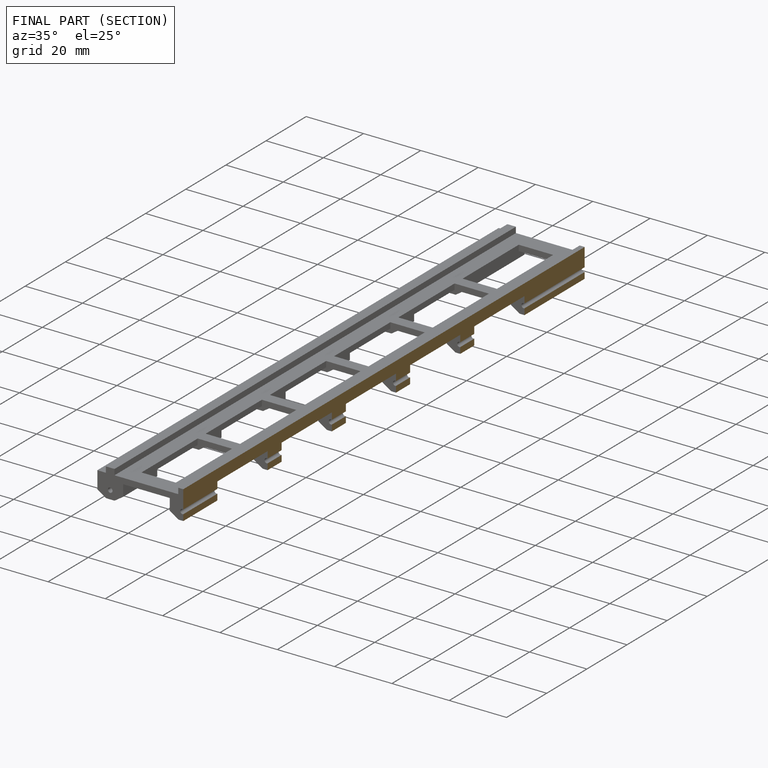
[diagram: finished part — half-section view (interior)]
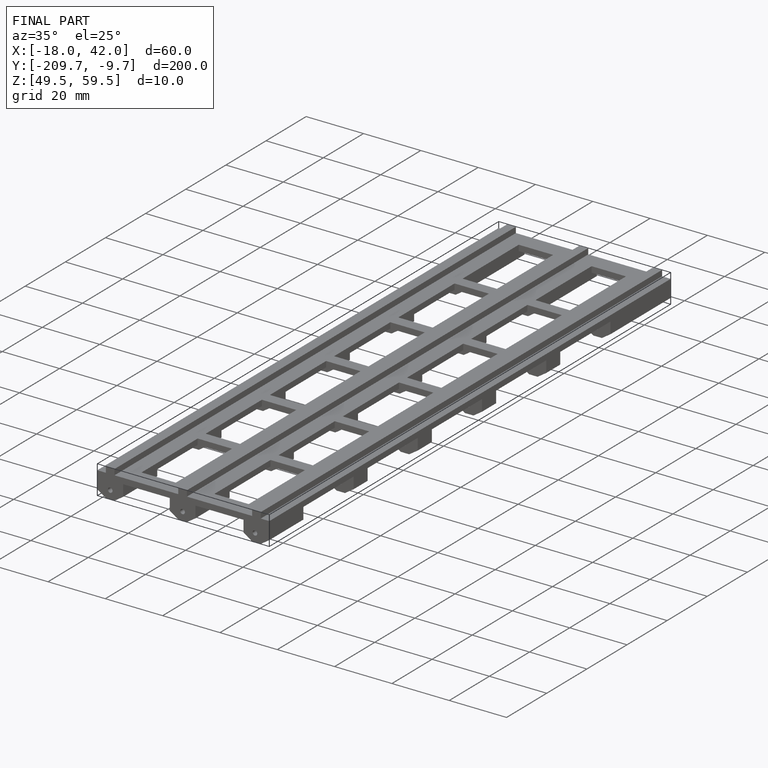
[diagram: finished part — iso view with bounding-box wireframe]
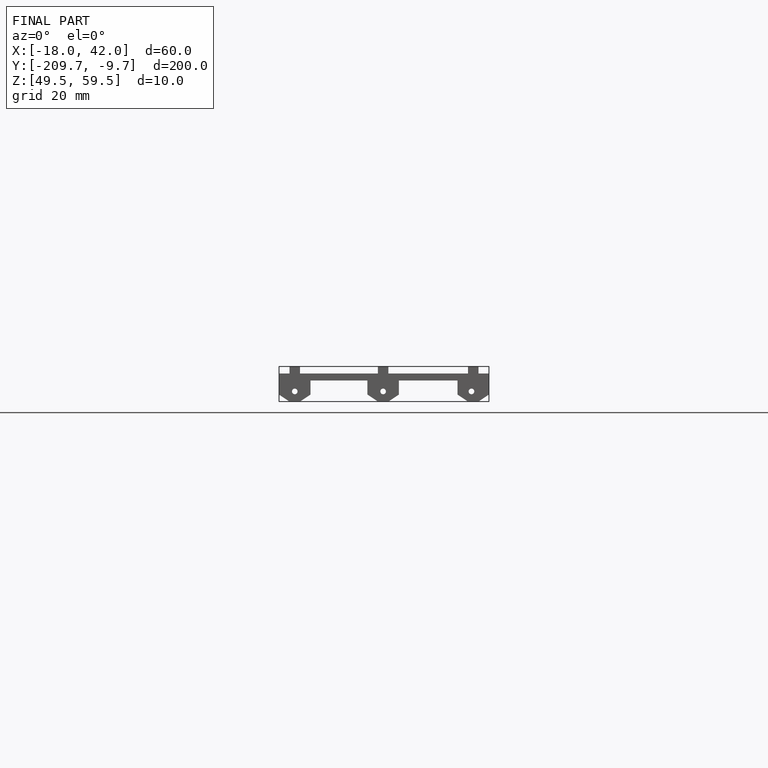
[diagram: finished part — front view with bounding-box wireframe]
